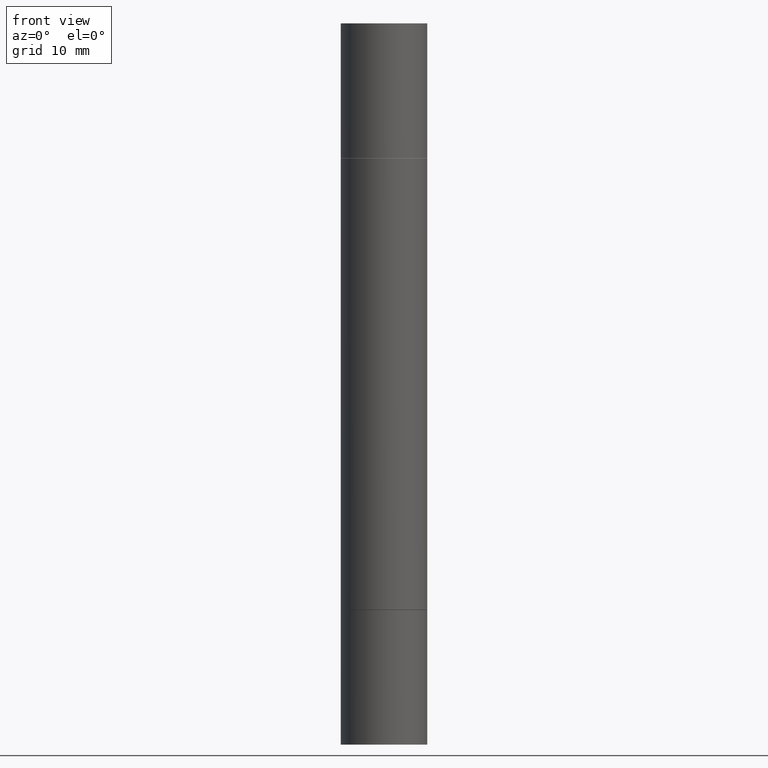
[diagram: clean part render]
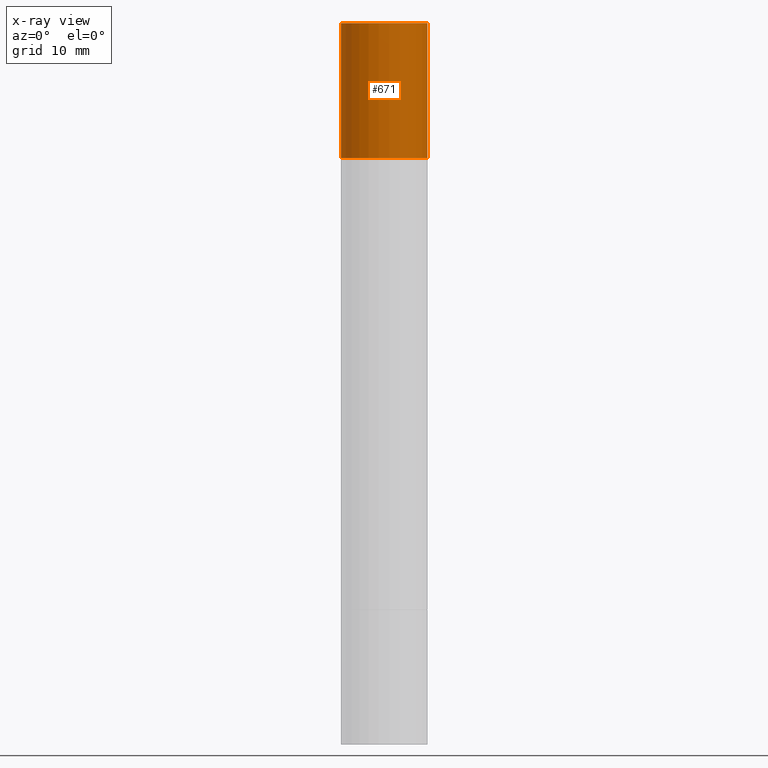
[diagram: x-ray — body ghosted, one internal face saturated and labeled with its STEP entity id]
A machine part, front view, then the same camera in x-ray: the body is ghosted and one INTERNAL B-rep face — a face not visible from any outside direction — is saturated and labeled: STEP entity #671.
In plain terms, the highlighted cylindrical surface (partial cylindrical patch) has radius 4.4996 mm, axis along (-0, -0, -1).
Its self-contained STEP definition (entity closure, byte-faithful):
#8 = EDGE_CURVE ( 'NONE', #269, #176, #424, .T. ) ;
#15 = VECTOR ( 'NONE', #126, 39.37007874015748143 ) ;
#25 = DIRECTION ( 'NONE',  ( 1.000000000000000000, -6.982962677686266711E-15, 0.000000000000000000 ) ) ;
#26 = AXIS2_PLACEMENT_3D ( 'NONE', #347, #279, #25 ) ;
#37 = VECTOR ( 'NONE', #611, 39.37007874015748143 ) ;
#45 = DIRECTION ( 'NONE',  ( 1.000000000000000000, -6.982962677686266711E-15, 0.000000000000000000 ) ) ;
#68 = EDGE_LOOP ( 'NONE', ( #274, #214, #372, #160 ) ) ;
#126 = DIRECTION ( 'NONE',  ( -2.445468806185136877E-29, -3.492890411551753071E-15, -1.000000000000000000 ) ) ;
#135 = FACE_OUTER_BOUND ( 'NONE', #68, .T. ) ;
#139 = CYLINDRICAL_SURFACE ( 'NONE', #209, 0.1771500000000000019 ) ;
#160 = ORIENTED_EDGE ( 'NONE', *, *, #628, .F. ) ;
#176 = VERTEX_POINT ( 'NONE', #310 ) ;
#209 = AXIS2_PLACEMENT_3D ( 'NONE', #555, #334, #297 ) ;
#214 = ORIENTED_EDGE ( 'NONE', *, *, #354, .T. ) ;
#264 = CARTESIAN_POINT ( 'NONE',  ( 5.873037884934223228E-29, -1.923200839900336120E-15, -0.5511999999999995792 ) ) ;
#269 = VERTEX_POINT ( 'NONE', #590 ) ;
#274 = ORIENTED_EDGE ( 'NONE', *, *, #8, .F. ) ;
#279 = DIRECTION ( 'NONE',  ( 2.445468806185136597E-29, 3.492890411551752677E-15, 1.000000000000000000 ) ) ;
#297 = DIRECTION ( 'NONE',  ( 1.000000000000000000, -6.982962677686272233E-15, 0.000000000000000000 ) ) ;
#310 = CARTESIAN_POINT ( 'NONE',  ( 0.1771500000000000019, -1.234951483405132701E-15, 5.463695987328526437E-16 ) ) ;
#319 = AXIS2_PLACEMENT_3D ( 'NONE', #264, #518, #45 ) ;
#334 = DIRECTION ( 'NONE',  ( -2.445468806185136597E-29, -3.492890411551752677E-15, -1.000000000000000000 ) ) ;
#347 = CARTESIAN_POINT ( 'NONE',  ( 7.220980290903470182E-29, 2.080354946989631982E-18, 5.463695987328526437E-16 ) ) ;
#354 = EDGE_CURVE ( 'NONE', #269, #540, #670, .T. ) ;
#363 = CARTESIAN_POINT ( 'NONE',  ( 0.1771500000000000019, -3.160232678252458120E-15, -0.5511999999999995792 ) ) ;
#372 = ORIENTED_EDGE ( 'NONE', *, *, #451, .T. ) ;
#424 = CIRCLE ( 'NONE', #26, 0.1771500000000000019 ) ;
#451 = EDGE_CURVE ( 'NONE', #540, #525, #562, .T. ) ;
#506 = CARTESIAN_POINT ( 'NONE',  ( -0.1771500000000000019, -9.096389231977797770E-15, -2.952799999999998981 ) ) ;
#518 = DIRECTION ( 'NONE',  ( 2.445468806185136597E-29, 3.492890411551752677E-15, 1.000000000000000000 ) ) ;
#525 = VERTEX_POINT ( 'NONE', #363 ) ;
#539 = LINE ( 'NONE', #591, #15 ) ;
#540 = VERTEX_POINT ( 'NONE', #574 ) ;
#555 = CARTESIAN_POINT ( 'NONE',  ( 0.000000000000000000, -1.031172645228302408E-14, -2.952799999999998981 ) ) ;
#562 = CIRCLE ( 'NONE', #319, 0.1771500000000000019 ) ;
#574 = CARTESIAN_POINT ( 'NONE',  ( -0.1771500000000000019, 2.547769778285537851E-16, -0.5511999999999995792 ) ) ;
#590 = CARTESIAN_POINT ( 'NONE',  ( -0.1771500000000000019, 2.547769778285537851E-16, 5.463695987328559963E-16 ) ) ;
#591 = CARTESIAN_POINT ( 'NONE',  ( 0.1771500000000000019, -1.154875829063514805E-14, -2.952799999999998981 ) ) ;
#611 = DIRECTION ( 'NONE',  ( -2.445468806185136877E-29, -3.492890411551753071E-15, -1.000000000000000000 ) ) ;
#628 = EDGE_CURVE ( 'NONE', #176, #525, #539, .T. ) ;
#670 = LINE ( 'NONE', #506, #37 ) ;
#671 = ADVANCED_FACE ( 'NONE', ( #135 ), #139, .T. ) ;